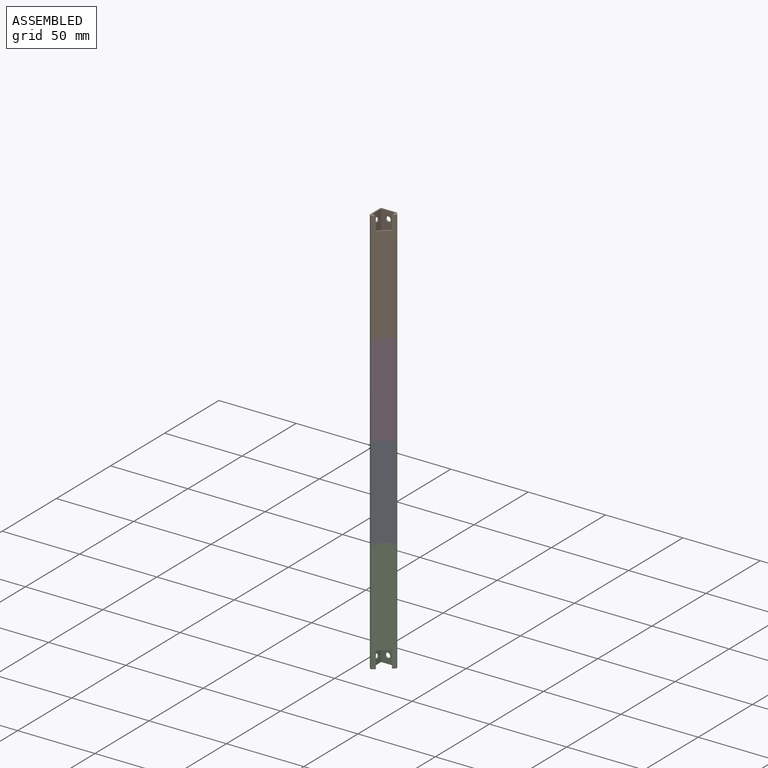
[diagram: assembled view]
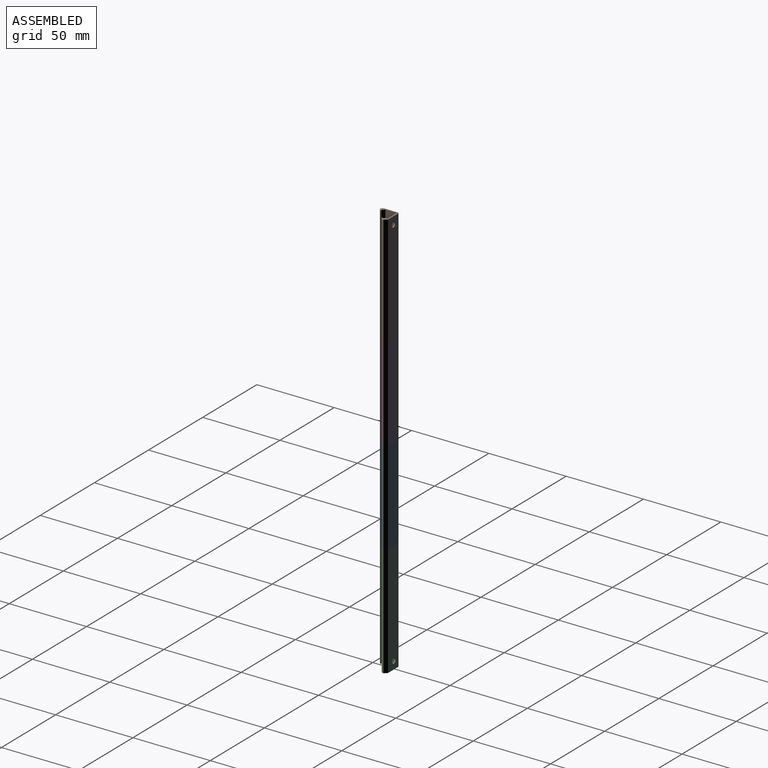
[diagram: assembled view, second angle]
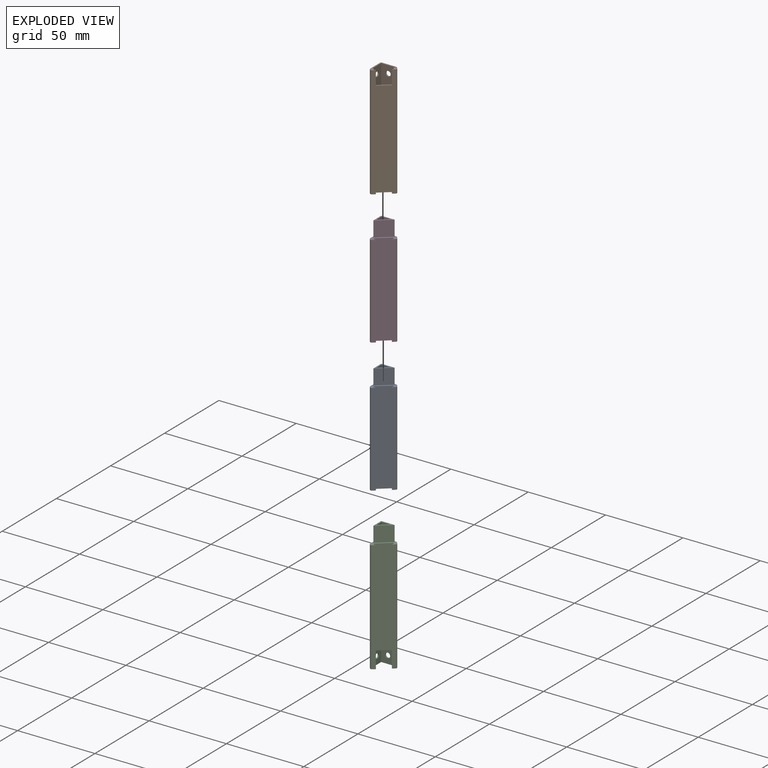
[diagram: exploded view]
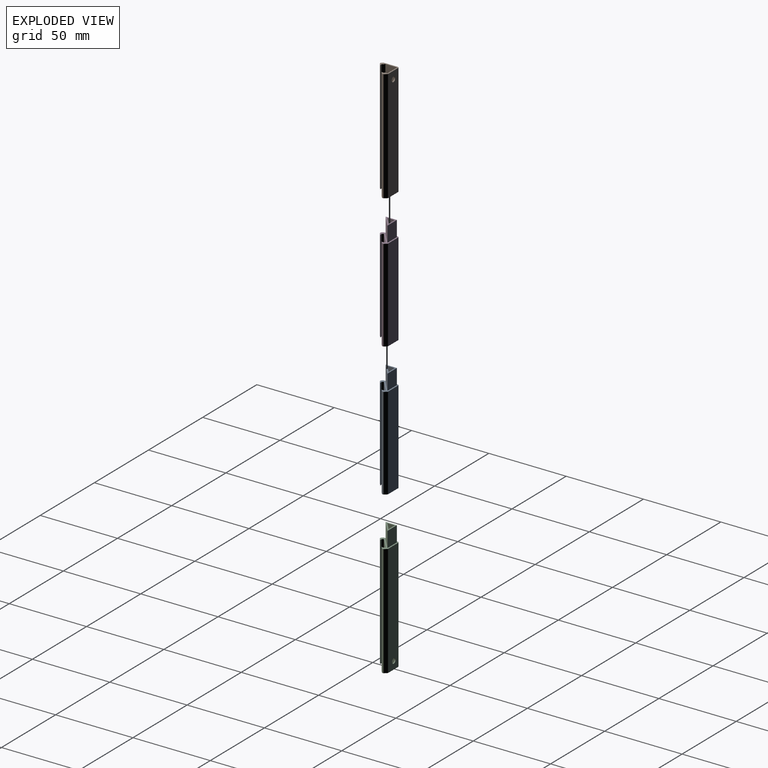
[diagram: exploded view, second angle]
ASSEMBLY  parts=4 mates=3
PART A: 31 faces, bbox 12x11.3x70 mm
  f0: plane 12.01x11.27mm, normal (0,0,1), area 37mm2, adj f4,f5,f6,f7,f8,f9,f10,f11
  f1: plane 51x7.61mm, normal (1,0,0), area 387.8mm2, adj f2,f3,f15,f16
  f2: plane 51x9.06mm, normal (0,-1,0), area 462.2mm2, adj f1,f3,f15,f18
  f3: plane 51x9.06mm, normal (-0.64,0.77,0), area 603.4mm2, adj f1,f2,f15,f17
  f4: plane 60x0.92mm, normal (0.77,0.64,0), area 72mm2, adj f0,f5,f14,f15
  f5: plane 60x8.04mm, normal (0.64,-0.77,0), area 630mm2, adj f0,f4,f6,f15
  f6: plane 60x0.92mm, normal (-0.77,-0.64,0), area 72mm2, adj f0,f5,f7,f15
  f7: plane 60x1.29mm, normal (-0.98,0.17,0), area 78.3mm2, adj f0,f6,f8,f15
  f8: plane 60x1.53mm, normal (0.64,-0.77,0), area 120mm2, adj f0,f7,f15,f28
  f9: plane 60x1.24mm, normal (0.77,0.64,0), area 97mm2, adj f0,f15,f28,f29
  f10: plane 60x8.97mm, normal (0,1,0), area 538.2mm2, adj f0,f15,f29,f30
  f11: plane 60x8.76mm, normal (-1,0,0), area 525.4mm2, adj f0,f15,f26,f30
  f12: plane 60x0.52mm, normal (-0.77,-0.64,0), area 40.5mm2, adj f0,f15,f26,f27
  f13: plane 60x1.53mm, normal (0.64,-0.77,0), area 120mm2, adj f0,f14,f15,f27
  f14: plane 60x1.31mm, normal (0,1,0), area 78.3mm2, adj f0,f4,f13,f15
  f15: plane 12.01x11.27mm, normal (0,0,-1), area 34.2mm2, adj f1,f2,f3,f4,f5,f6,f7,f8
  f16: plane 9x7.61mm, normal (1,0,-0.1), area 56mm2, adj f1,f17,f18,f19
  f17: plane 9.06x9mm, normal (-0.64,0.76,-0.1), area 87.1mm2, adj f3,f16,f18,f24
  f18: plane 9.06x9mm, normal (0,-1,-0.1), area 66.7mm2, adj f2,f16,f17,f20
  f19: plane 10x4.77mm, normal (1,0,0), area 47.7mm2, adj f16,f20,f24,f25
  f20: plane 10x5.69mm, normal (0,-1,0), area 56.9mm2, adj f18,f19,f24,f25
  f21: plane 10x8.69mm, normal (0,1,0), area 86.9mm2, adj f0,f22,f23,f25
  f22: plane 10x7.29mm, normal (-1,0,0), area 72.9mm2, adj f0,f21,f23,f25
  f23: plane 10x8.69mm, normal (0.64,-0.77,0), area 113.4mm2, adj f0,f21,f22,f25
  f24: plane 10x5.69mm, normal (-0.64,0.77,0), area 74.3mm2, adj f17,f19,f20,f25
  f25: plane 8.69x7.29mm, normal (0,0,1), area 18.1mm2, adj f19,f20,f21,f22,f23,f24
  f26: cylinder r=1mm len=60mm, axis (0,0,1), area 41.9mm2, adj f0,f11,f12,f15
  f27: cylinder r=1mm len=60mm, axis (0,0,-1), area 94.2mm2, adj f0,f12,f13,f15
  f28: cylinder r=1mm len=60mm, axis (0,0,-1), area 94.2mm2, adj f0,f8,f9,f15
  f29: cylinder r=1mm len=60mm, axis (0,0,-1), area 52.4mm2, adj f0,f9,f10,f15
  f30: cylinder r=1mm len=60mm, axis (0,0,-1), area 94.2mm2, adj f0,f10,f11,f15
PART B: 26 faces, bbox 12x11.3x72.5 mm
  f0: plane 9.06x8.04mm, normal (0,0,1), area 8.9mm2, adj f10,f14,f16,f17
  f1: plane 72.5x7.61mm, normal (1,0,0), area 543.3mm2, adj f2,f14,f15,f16,f18,f19
  f2: plane 72.5x9.06mm, normal (0,-1,0), area 649mm2, adj f1,f14,f15,f17,f18,f20
  f3: plane 72.5x1.24mm, normal (0.77,0.64,0), area 117.2mm2, adj f15,f18,f21,f24
  f4: plane 72.5x8.97mm, normal (0,1,0), area 642.3mm2, adj f15,f18,f20,f24,f25
  f5: plane 72.5x8.76mm, normal (-1,0,0), area 626.8mm2, adj f15,f18,f19,f22,f25
  f6: plane 72.5x0.52mm, normal (-0.77,-0.64,0), area 48.9mm2, adj f15,f18,f22,f23
  f7: plane 72.5x1.53mm, normal (0.64,-0.77,0), area 145mm2, adj f8,f15,f18,f23
  f8: plane 72.5x1.31mm, normal (0,1,0), area 94.6mm2, adj f7,f9,f15,f18
  f9: plane 72.5x0.92mm, normal (0.77,0.64,0), area 87mm2, adj f8,f10,f15,f16,f18
  f10: plane 62.5x8.04mm, normal (0.64,-0.77,0), area 656.3mm2, adj f0,f9,f11,f15
  f11: plane 72.5x0.92mm, normal (-0.77,-0.64,0), area 87mm2, adj f10,f12,f15,f17,f18
  f12: plane 72.5x1.29mm, normal (-0.98,0.17,0), area 94.6mm2, adj f11,f13,f15,f18
  f13: plane 72.5x1.53mm, normal (0.64,-0.77,0), area 145mm2, adj f12,f15,f18,f21
  f14: plane 62.5x9.06mm, normal (-0.64,0.77,0), area 739.4mm2, adj f0,f1,f2,f15
  f15: plane 12.01x11.27mm, normal (0,0,-1), area 34.2mm2, adj f1,f2,f3,f4,f5,f6,f7,f8
  f16: plane 10x0.73mm, normal (0.51,0.86,0), area 8.5mm2, adj f0,f1,f9,f18
  f17: plane 10x1.29mm, normal (-0.98,0.22,0), area 13.2mm2, adj f0,f2,f11,f18
  f18: plane 12.01x11.27mm, normal (0,0,1), area 25.3mm2, adj f1,f2,f3,f4,f5,f6,f7,f8
  f19: cylinder r=1.6mm len=3.2mm, axis (1,0,0), area 8mm2, adj f1,f5
  f20: cylinder r=1.6mm len=3.2mm, axis (0,-1,0), area 8mm2, adj f2,f4
  f21: cylinder r=1mm len=72.5mm, axis (0,0,-1), area 113.9mm2, adj f3,f13,f15,f18
  f22: cylinder r=1mm len=72.5mm, axis (0,0,1), area 50.6mm2, adj f5,f6,f15,f18
  f23: cylinder r=1mm len=72.5mm, axis (0,0,-1), area 113.9mm2, adj f6,f7,f15,f18
  f24: cylinder r=1mm len=72.5mm, axis (0,0,-1), area 63.3mm2, adj f3,f4,f15,f18
  f25: cylinder r=1mm len=72.5mm, axis (0,0,-1), area 113.9mm2, adj f4,f5,f15,f18
PART C: 36 faces, bbox 12x11.3x82.5 mm
  f0: plane 9.06x8.04mm, normal (0,0,-1), area 8.9mm2, adj f4,f6,f25,f26
  f1: plane 63.5x9.06mm, normal (0,-1,0), area 567.5mm2, adj f3,f4,f23,f24,f26,f30
  f2: plane 12.01x11.27mm, normal (0,0,1), area 37mm2, adj f5,f6,f7,f8,f9,f10,f11,f12
  f3: plane 63.5x7.61mm, normal (1,0,0), area 474.9mm2, adj f1,f4,f23,f25,f27,f28
  f4: plane 53.5x9.06mm, normal (-0.64,0.77,0), area 633mm2, adj f0,f1,f3,f29
  f5: plane 72.5x0.92mm, normal (0.77,0.64,0), area 87mm2, adj f2,f6,f15,f23,f25
  f6: plane 62.5x8.04mm, normal (0.64,-0.77,0), area 656.3mm2, adj f0,f2,f5,f7
  f7: plane 72.5x0.92mm, normal (-0.77,-0.64,0), area 87mm2, adj f2,f6,f8,f23,f26
  f8: plane 72.5x1.29mm, normal (-0.98,0.17,0), area 94.6mm2, adj f2,f7,f9,f23
  f9: plane 72.5x1.53mm, normal (0.64,-0.77,0), area 145mm2, adj f2,f8,f23,f33
  f10: plane 72.5x1.24mm, normal (0.77,0.64,0), area 117.2mm2, adj f2,f23,f33,f34
  f11: plane 72.5x8.97mm, normal (0,1,0), area 642.3mm2, adj f2,f23,f24,f34,f35
  f12: plane 72.5x8.76mm, normal (-1,0,0), area 626.8mm2, adj f2,f23,f27,f31,f35
  f13: plane 72.5x0.52mm, normal (-0.77,-0.64,0), area 48.9mm2, adj f2,f23,f31,f32
  f14: plane 72.5x1.53mm, normal (0.64,-0.77,0), area 145mm2, adj f2,f15,f23,f32
  f15: plane 72.5x1.31mm, normal (0,1,0), area 94.6mm2, adj f2,f5,f14,f23
  f16: plane 10x4.77mm, normal (1,0,0), area 47.7mm2, adj f17,f18,f22,f28
  f17: plane 10x5.69mm, normal (0,-1,0), area 56.9mm2, adj f16,f18,f22,f30
  f18: plane 10x5.69mm, normal (-0.64,0.77,0), area 74.3mm2, adj f16,f17,f22,f29
  f19: plane 10x8.69mm, normal (0,1,0), area 86.9mm2, adj f2,f20,f21,f22
  f20: plane 10x7.29mm, normal (-1,0,0), area 72.9mm2, adj f2,f19,f21,f22
  f21: plane 10x8.69mm, normal (0.64,-0.77,0), area 113.4mm2, adj f2,f19,f20,f22
  f22: plane 8.69x7.29mm, normal (0,0,1), area 18.1mm2, adj f16,f17,f18,f19,f20,f21
  f23: plane 12.01x11.27mm, normal (0,0,-1), area 25.3mm2, adj f1,f3,f5,f7,f8,f9,f10,f11
  f24: cylinder r=1.6mm len=3.2mm, axis (0,-1,0), area 8mm2, adj f1,f11
  f25: plane 10x0.73mm, normal (0.51,0.86,0), area 8.5mm2, adj f0,f3,f5,f23
  f26: plane 10x1.29mm, normal (-0.98,0.22,0), area 13.2mm2, adj f0,f1,f7,f23
  f27: cylinder r=1.6mm len=3.2mm, axis (1,0,0), area 8mm2, adj f3,f12
  f28: plane 9x7.61mm, normal (1,0,-0.1), area 56mm2, adj f3,f16,f29,f30
  f29: plane 9.06x9mm, normal (-0.64,0.76,-0.1), area 87.1mm2, adj f4,f18,f28,f30
  f30: plane 9.06x9mm, normal (0,-1,-0.1), area 66.7mm2, adj f1,f17,f28,f29
  f31: cylinder r=1mm len=72.5mm, axis (0,0,1), area 50.6mm2, adj f2,f12,f13,f23
  f32: cylinder r=1mm len=72.5mm, axis (0,0,-1), area 113.9mm2, adj f2,f13,f14,f23
  f33: cylinder r=1mm len=72.5mm, axis (0,0,-1), area 113.9mm2, adj f2,f9,f10,f23
  f34: cylinder r=1mm len=72.5mm, axis (0,0,-1), area 63.3mm2, adj f2,f10,f11,f23
  f35: cylinder r=1mm len=72.5mm, axis (0,0,-1), area 113.9mm2, adj f2,f11,f12,f23
PART D: same geometry as A
PLACE A t=(0.1,27.7,-60)mm
PLACE B t=(-36.28,30.02,60)mm
PLACE C t=(-14.58,41.17,-122.5)mm
PLACE D t=(0.1,27.7,0)mm
MATE fastened D.f0 <-> B.f15  axis (0,0,1) through (-13.05,33.14,60)mm
MATE fastened D.f15 <-> A.f0  axis (0,0,-1) through (-13.05,33.14,0)mm
MATE fastened A.f15 <-> C.f2  axis (0,0,-1) through (-5,39.88,-60)mm
